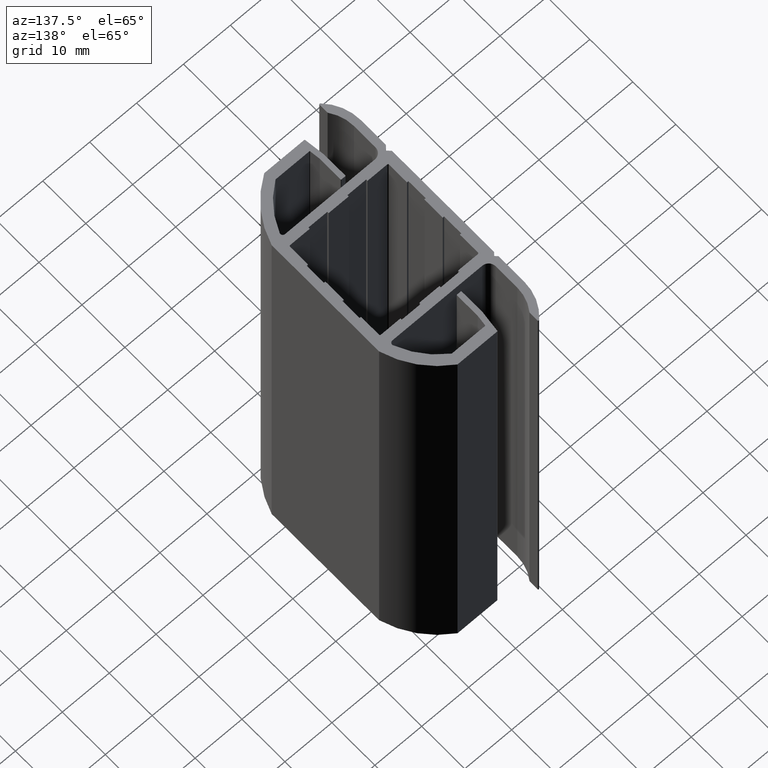
[diagram: clean part render]
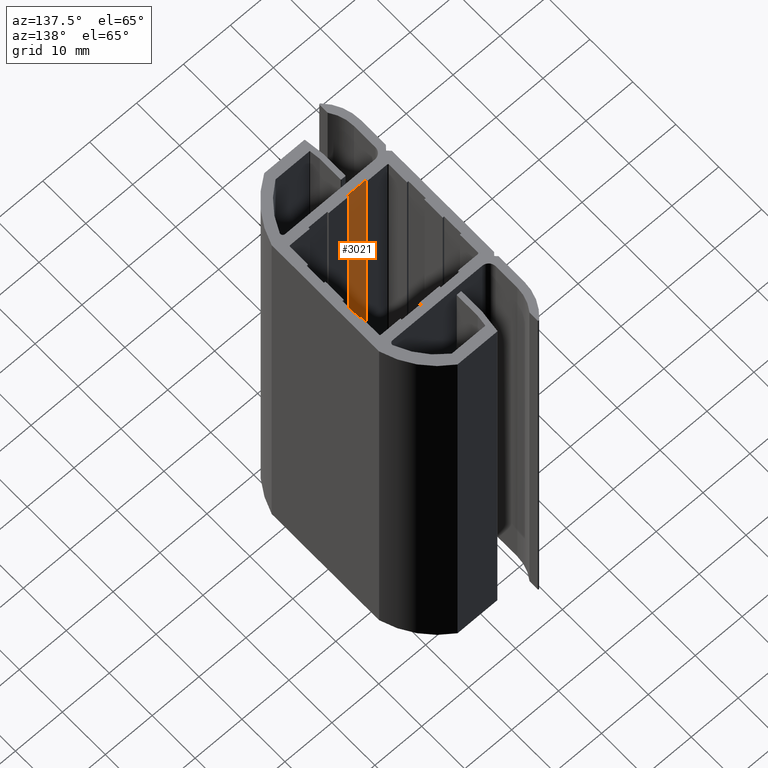
[diagram: same view with one face highlighted and labeled with its STEP entity id]
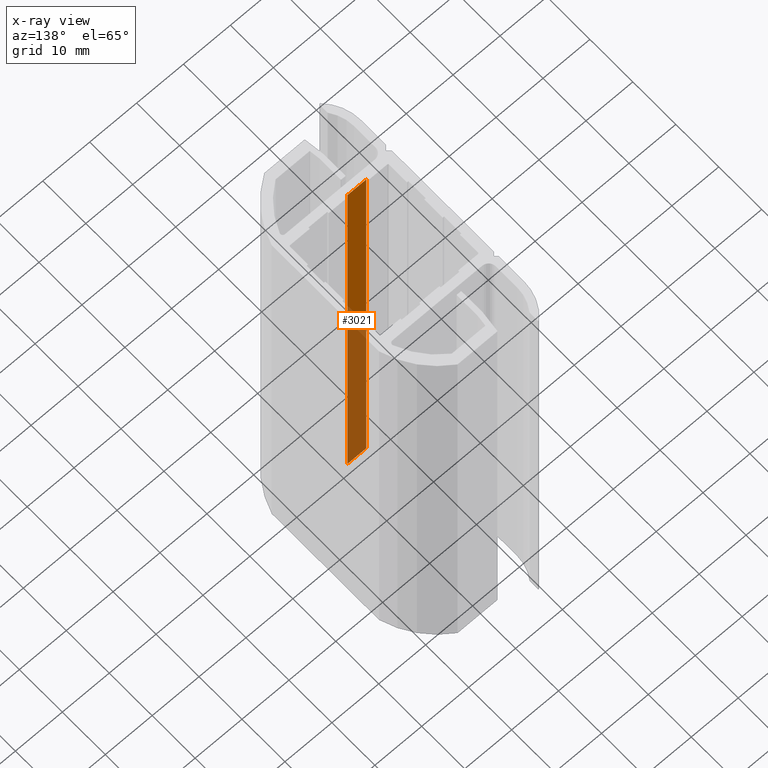
[diagram: x-ray of the same camera — body ghosted, the highlighted face saturated]
A machine part, auxiliary view. The second image highlights one B-rep face of the part: STEP entity #3021.
The next image is the same camera in x-ray: the body ghosted, the highlighted face saturated — about 53% of this face is hidden behind the body in this view.
In plain terms, the highlighted planar face has unit normal (0, 1, 0).
Its self-contained STEP definition (entity closure, byte-faithful):
#2965=CARTESIAN_POINT('',(8.399999999999864,-10.850000000000307,-100.0));
#2966=VERTEX_POINT('',#2965);
#2973=CARTESIAN_POINT('',(8.399999999999864,-10.850000000000307,0.0));
#2974=VERTEX_POINT('',#2973);
#2975=CARTESIAN_POINT('',(8.399999999999864,-10.850000000000307,-100.0));
#2976=DIRECTION('',(0.0,0.0,1.0));
#2977=VECTOR('',#2976,100.0);
#2978=LINE('',#2975,#2977);
#2979=EDGE_CURVE('',#2966,#2974,#2978,.T.);
#2991=CARTESIAN_POINT('',(8.399999999999864,-10.850000000000307,-100.0));
#2992=DIRECTION('',(0.0,1.0,0.0));
#2993=DIRECTION('',(-1.0,0.0,0.0));
#2994=AXIS2_PLACEMENT_3D('',#2991,#2992,#2993);
#2995=PLANE('',#2994);
#2996=CARTESIAN_POINT('',(4.399999999999864,-10.850000000000307,-100.0));
#2997=VERTEX_POINT('',#2996);
#2998=CARTESIAN_POINT('',(8.399999999999864,-10.850000000000307,-100.0));
#2999=DIRECTION('',(-1.0,0.0,0.0));
#3000=VECTOR('',#2999,4.0);
#3001=LINE('',#2998,#3000);
#3002=EDGE_CURVE('',#2966,#2997,#3001,.T.);
#3003=ORIENTED_EDGE('',*,*,#3002,.T.);
#3004=CARTESIAN_POINT('',(4.399999999999864,-10.850000000000307,0.0));
#3005=VERTEX_POINT('',#3004);
#3006=CARTESIAN_POINT('',(4.399999999999864,-10.850000000000307,-100.0));
#3007=DIRECTION('',(0.0,0.0,1.0));
#3008=VECTOR('',#3007,100.0);
#3009=LINE('',#3006,#3008);
#3010=EDGE_CURVE('',#2997,#3005,#3009,.T.);
#3011=ORIENTED_EDGE('',*,*,#3010,.T.);
#3012=CARTESIAN_POINT('',(8.399999999999864,-10.850000000000307,0.0));
#3013=DIRECTION('',(-1.0,0.0,0.0));
#3014=VECTOR('',#3013,4.0);
#3015=LINE('',#3012,#3014);
#3016=EDGE_CURVE('',#2974,#3005,#3015,.T.);
#3017=ORIENTED_EDGE('',*,*,#3016,.F.);
#3018=ORIENTED_EDGE('',*,*,#2979,.F.);
#3019=EDGE_LOOP('',(#3003,#3011,#3017,#3018));
#3020=FACE_OUTER_BOUND('',#3019,.T.);
#3021=ADVANCED_FACE('',(#3020),#2995,.T.);